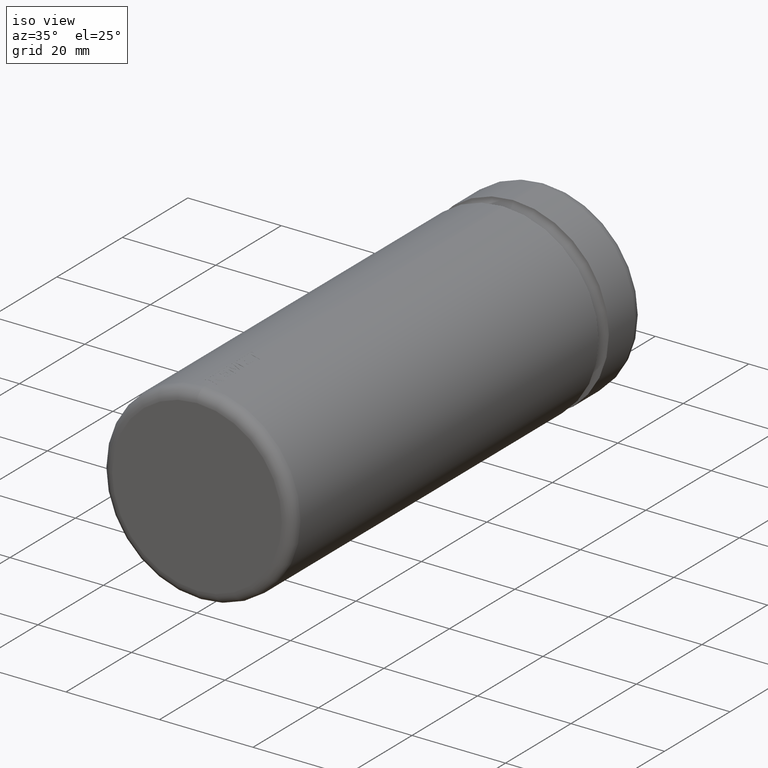
[diagram: clean part render]
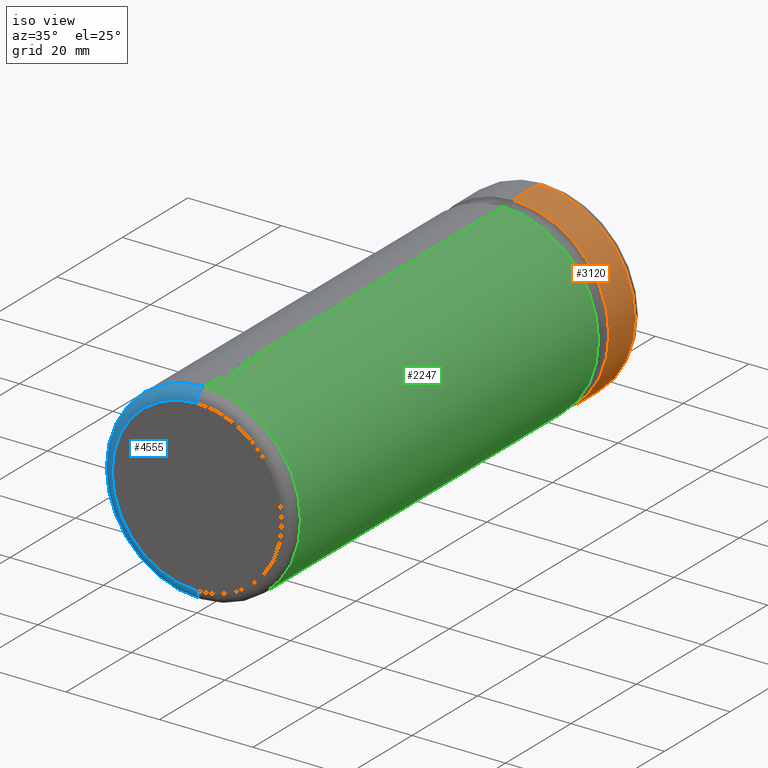
[diagram: same view with three faces highlighted in distinct colors, each labeled with its STEP entity id]
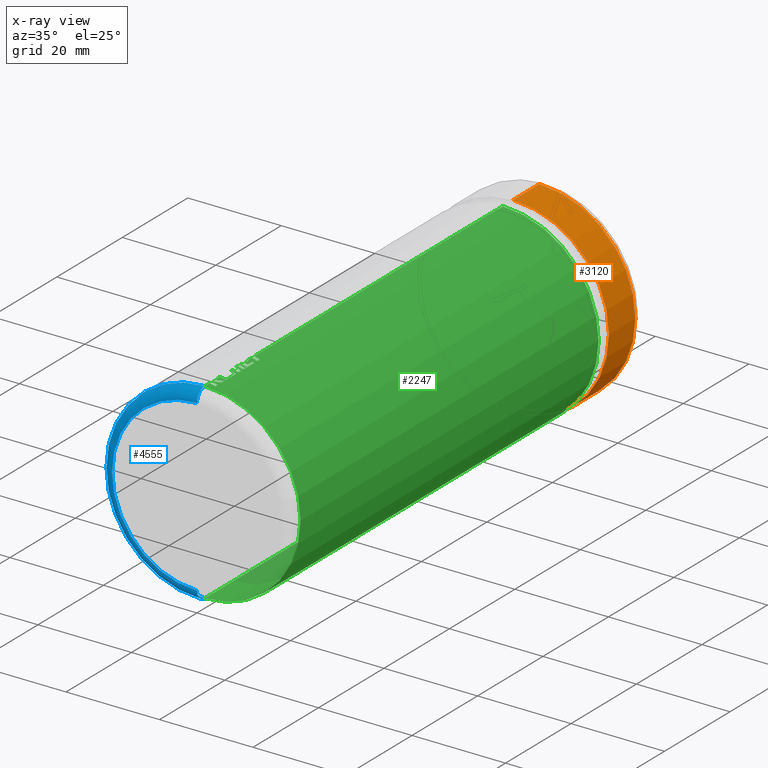
[diagram: x-ray of the same camera — body ghosted, the three highlighted faces saturated]
A machine part, iso view with three faces highlighted in distinct colors.
The next image is the same camera in x-ray (body ghosted, the three faces saturated) — at least one of them is partly hidden behind the body in this view.
Their STEP definitions:

[orange] entity #3120 — the highlighted cylindrical surface (partial cylindrical patch) has radius 20.5 mm, axis along (-0, -1, -0).
#86 = CIRCLE ( 'NONE', #279, 20.49999999999999600 ) ;
#88 = CARTESIAN_POINT ( 'NONE',  ( 0.0000000000000000000, 96.57685999999999600, -20.49999999999999600 ) ) ;
#195 = CARTESIAN_POINT ( 'NONE',  ( 2.510525938252074500E-015, 107.0000000000000000, 20.50000000000000000 ) ) ;
#279 = AXIS2_PLACEMENT_3D ( 'NONE', #700, #2280, #3020 ) ;
#577 = ORIENTED_EDGE ( 'NONE', *, *, #1472, .T. ) ;
#700 = CARTESIAN_POINT ( 'NONE',  ( 0.0000000000000000000, 96.57685999999999600, 0.0000000000000000000 ) ) ;
#712 = CARTESIAN_POINT ( 'NONE',  ( 0.0000000000000000000, 107.0000000000000000, 0.0000000000000000000 ) ) ;
#870 = AXIS2_PLACEMENT_3D ( 'NONE', #3249, #3941, #1787 ) ;
#895 = EDGE_CURVE ( 'NONE', #2580, #4649, #4565, .T. ) ;
#976 = FACE_OUTER_BOUND ( 'NONE', #1151, .T. ) ;
#1151 = EDGE_LOOP ( 'NONE', ( #3290, #577, #3296, #4280 ) ) ;
#1184 = DIRECTION ( 'NONE',  ( -0.0000000000000000000, -1.000000000000000000, -0.0000000000000000000 ) ) ;
#1356 = VECTOR ( 'NONE', #4265, 1000.000000000000000 ) ;
#1472 = EDGE_CURVE ( 'NONE', #4014, #3039, #1805, .T. ) ;
#1787 = DIRECTION ( 'NONE',  ( 0.0000000000000000000, 0.0000000000000000000, 1.000000000000000000 ) ) ;
#1805 = LINE ( 'NONE', #195, #4560 ) ;
#2214 = DIRECTION ( 'NONE',  ( 0.0000000000000000000, 0.0000000000000000000, -1.000000000000000000 ) ) ;
#2265 = CARTESIAN_POINT ( 'NONE',  ( 2.510525938252074500E-015, 104.6383999999999900, 20.50000000000000000 ) ) ;
#2280 = DIRECTION ( 'NONE',  ( -0.0000000000000000000, 1.000000000000000000, -0.0000000000000000000 ) ) ;
#2420 = CIRCLE ( 'NONE', #870, 20.50000000000000000 ) ;
#2580 = VERTEX_POINT ( 'NONE', #4202 ) ;
#3020 = DIRECTION ( 'NONE',  ( 0.0000000000000000000, 0.0000000000000000000, 1.000000000000000000 ) ) ;
#3032 = CYLINDRICAL_SURFACE ( 'NONE', #3324, 20.50000000000000000 ) ;
#3039 = VERTEX_POINT ( 'NONE', #4141 ) ;
#3120 = ADVANCED_FACE ( 'NONE', ( #976 ), #3032, .T. ) ;
#3249 = CARTESIAN_POINT ( 'NONE',  ( 0.0000000000000000000, 104.6383999999999900, 0.0000000000000000000 ) ) ;
#3290 = ORIENTED_EDGE ( 'NONE', *, *, #3401, .T. ) ;
#3296 = ORIENTED_EDGE ( 'NONE', *, *, #4359, .T. ) ;
#3324 = AXIS2_PLACEMENT_3D ( 'NONE', #712, #4373, #2214 ) ;
#3401 = EDGE_CURVE ( 'NONE', #2580, #4014, #2420, .T. ) ;
#3564 = CARTESIAN_POINT ( 'NONE',  ( 0.0000000000000000000, 107.0000000000000000, -20.50000000000000000 ) ) ;
#3941 = DIRECTION ( 'NONE',  ( -0.0000000000000000000, -1.000000000000000000, -0.0000000000000000000 ) ) ;
#4014 = VERTEX_POINT ( 'NONE', #2265 ) ;
#4141 = CARTESIAN_POINT ( 'NONE',  ( 2.510525938252074500E-015, 96.57685999999999600, 20.49999999999999600 ) ) ;
#4202 = CARTESIAN_POINT ( 'NONE',  ( 0.0000000000000000000, 104.6383999999999900, -20.50000000000000000 ) ) ;
#4265 = DIRECTION ( 'NONE',  ( -0.0000000000000000000, -1.000000000000000000, -0.0000000000000000000 ) ) ;
#4280 = ORIENTED_EDGE ( 'NONE', *, *, #895, .F. ) ;
#4359 = EDGE_CURVE ( 'NONE', #3039, #4649, #86, .T. ) ;
#4373 = DIRECTION ( 'NONE',  ( -0.0000000000000000000, -1.000000000000000000, -0.0000000000000000000 ) ) ;
#4560 = VECTOR ( 'NONE', #1184, 1000.000000000000000 ) ;
#4565 = LINE ( 'NONE', #3564, #1356 ) ;
#4649 = VERTEX_POINT ( 'NONE', #88 ) ;

[blue] entity #4555 — the highlighted toroidal blend (fillet) surface has major radius 18.1384 mm and minor (blend) radius 2.3616 mm.
#89 = EDGE_CURVE ( 'NONE', #3268, #2226, #3265, .T. ) ;
#314 = AXIS2_PLACEMENT_3D ( 'NONE', #399, #750, #3671 ) ;
#399 = CARTESIAN_POINT ( 'NONE',  ( 0.0000000000000000000, 2.361600000000005500, 18.13839999999999700 ) ) ;
#400 = DIRECTION ( 'NONE',  ( 0.0000000000000000000, 0.0000000000000000000, 1.000000000000000000 ) ) ;
#427 = FACE_OUTER_BOUND ( 'NONE', #3603, .T. ) ;
#750 = DIRECTION ( 'NONE',  ( -1.000000000000000000, 0.0000000000000000000, 0.0000000000000000000 ) ) ;
#943 = CIRCLE ( 'NONE', #3083, 18.13839999999999700 ) ;
#1060 = TOROIDAL_SURFACE ( 'NONE', #2135, 18.13839999999999700, 2.361600000000000100 ) ;
#1121 = DIRECTION ( 'NONE',  ( 1.224646799147353700E-016, 0.0000000000000000000, -1.000000000000000000 ) ) ;
#1138 = ORIENTED_EDGE ( 'NONE', *, *, #4123, .T. ) ;
#1300 = DIRECTION ( 'NONE',  ( 0.0000000000000000000, 1.000000000000000000, 0.0000000000000000000 ) ) ;
#1364 = EDGE_CURVE ( 'NONE', #1875, #3268, #943, .T. ) ;
#1391 = CARTESIAN_POINT ( 'NONE',  ( 0.0000000000000000000, 0.0000000000000000000, 18.13839999999999700 ) ) ;
#1483 = DIRECTION ( 'NONE',  ( 1.000000000000000000, -0.0000000000000000000, 1.224646799147353200E-016 ) ) ;
#1512 = ORIENTED_EDGE ( 'NONE', *, *, #2922, .F. ) ;
#1816 = CARTESIAN_POINT ( 'NONE',  ( 2.221313350165435200E-015, 2.361600000000005500, -18.13839999999999700 ) ) ;
#1847 = ORIENTED_EDGE ( 'NONE', *, *, #1364, .F. ) ;
#1875 = VERTEX_POINT ( 'NONE', #1391 ) ;
#1975 = CARTESIAN_POINT ( 'NONE',  ( 2.365919644208754400E-015, 0.0000000000000000000, -18.13839999999999700 ) ) ;
#2004 = CARTESIAN_POINT ( 'NONE',  ( 0.0000000000000000000, 2.361600000000005500, 0.0000000000000000000 ) ) ;
#2015 = DIRECTION ( 'NONE',  ( 0.0000000000000000000, 0.0000000000000000000, 1.000000000000000000 ) ) ;
#2133 = CARTESIAN_POINT ( 'NONE',  ( 0.0000000000000000000, 2.361600000000005500, 20.49999999999999600 ) ) ;
#2135 = AXIS2_PLACEMENT_3D ( 'NONE', #4257, #3643, #400 ) ;
#2226 = VERTEX_POINT ( 'NONE', #3218 ) ;
#2475 = ORIENTED_EDGE ( 'NONE', *, *, #89, .F. ) ;
#2627 = AXIS2_PLACEMENT_3D ( 'NONE', #2004, #1300, #2015 ) ;
#2715 = CARTESIAN_POINT ( 'NONE',  ( 0.0000000000000000000, 0.0000000000000000000, 0.0000000000000000000 ) ) ;
#2770 = CIRCLE ( 'NONE', #2627, 20.50000000000000000 ) ;
#2841 = AXIS2_PLACEMENT_3D ( 'NONE', #1816, #1483, #1121 ) ;
#2922 = EDGE_CURVE ( 'NONE', #2226, #3450, #2770, .T. ) ;
#3083 = AXIS2_PLACEMENT_3D ( 'NONE', #2715, #3761, #4464 ) ;
#3218 = CARTESIAN_POINT ( 'NONE',  ( 2.510525938252074100E-015, 2.361600000000005500, -20.49999999999999600 ) ) ;
#3265 = CIRCLE ( 'NONE', #2841, 2.361599999999998400 ) ;
#3268 = VERTEX_POINT ( 'NONE', #1975 ) ;
#3450 = VERTEX_POINT ( 'NONE', #2133 ) ;
#3603 = EDGE_LOOP ( 'NONE', ( #2475, #1847, #1138, #1512 ) ) ;
#3643 = DIRECTION ( 'NONE',  ( 0.0000000000000000000, 1.000000000000000000, 0.0000000000000000000 ) ) ;
#3671 = DIRECTION ( 'NONE',  ( 0.0000000000000000000, 0.0000000000000000000, 1.000000000000000000 ) ) ;
#3761 = DIRECTION ( 'NONE',  ( -0.0000000000000000000, -1.000000000000000000, -0.0000000000000000000 ) ) ;
#4123 = EDGE_CURVE ( 'NONE', #1875, #3450, #4624, .T. ) ;
#4257 = CARTESIAN_POINT ( 'NONE',  ( 0.0000000000000000000, 2.361600000000005500, 0.0000000000000000000 ) ) ;
#4464 = DIRECTION ( 'NONE',  ( 0.0000000000000000000, 0.0000000000000000000, 1.000000000000000000 ) ) ;
#4555 = ADVANCED_FACE ( 'NONE', ( #427 ), #1060, .T. ) ;
#4624 = CIRCLE ( 'NONE', #314, 2.361599999999998400 ) ;

[green] entity #2247 — the highlighted cylindrical surface (partial cylindrical patch) has radius 20.5 mm, axis along (-0, -1, -0).
#8 = B_SPLINE_CURVE_WITH_KNOTS ( 'NONE', 3,
 ( #3325, #1134, #3040, #129 ),
 .UNSPECIFIED., .F., .F.,
 ( 4, 4 ),
 ( 0.06501775419659658300, 1.000000000000000000 ),
 .UNSPECIFIED. ) ;
#62 = CIRCLE ( 'NONE', #4376, 20.50000000000000000 ) ;
#67 = B_SPLINE_CURVE_WITH_KNOTS ( 'NONE', 3,
 ( #630, #2462, #3215, #698 ),
 .UNSPECIFIED., .F., .F.,
 ( 4, 4 ),
 ( 0.0000000000000000000, 0.6291467272315028900 ),
 .UNSPECIFIED. ) ;
#87 = DIRECTION ( 'NONE',  ( -0.0000000000000000000, -1.000000000000000000, -0.0000000000000000000 ) ) ;
#129 = CARTESIAN_POINT ( 'NONE',  ( 1.533874242116386900, 5.354437851732230400, 20.44253481859262700 ) ) ;
#159 = VERTEX_POINT ( 'NONE', #1553 ) ;
#176 = CARTESIAN_POINT ( 'NONE',  ( -8.806211603291655700E-010, 13.52376457376976400, 20.49998773079722600 ) ) ;
#199 = CARTESIAN_POINT ( 'NONE',  ( -1.369721280562634400E-010, 4.664714496102076800, 20.49999993562216000 ) ) ;
#210 = ORIENTED_EDGE ( 'NONE', *, *, #3796, .T. ) ;
#219 = LINE ( 'NONE', #319, #3862 ) ;
#223 = CARTESIAN_POINT ( 'NONE',  ( -2.643939066426523100E-010, 5.638215953928424900, 20.49999993557945300 ) ) ;
#238 = CARTESIAN_POINT ( 'NONE',  ( 1.151100656243657600, 15.47591010259835000, 20.46855548499425800 ) ) ;
#257 = CARTESIAN_POINT ( 'NONE',  ( 1.533874242116382900, 3.364711372035853000, 20.44253481859263000 ) ) ;
#286 = CARTESIAN_POINT ( 'NONE',  ( 0.5117677789836189200, 12.24362340760251700, 20.49998158459709400 ) ) ;
#287 = ORIENTED_EDGE ( 'NONE', *, *, #2301, .F. ) ;
#310 = CARTESIAN_POINT ( 'NONE',  ( 0.5117700421562495500, 5.850347737387600100, 20.49999872179890700 ) ) ;
#319 = CARTESIAN_POINT ( 'NONE',  ( 2.510525938252074500E-015, 107.0000000000000000, 20.50000000000000000 ) ) ;
#330 = CARTESIAN_POINT ( 'NONE',  ( -8.792321618209400800E-010, 3.805932654816530200, 20.49998773084443100 ) ) ;
#332 = VERTEX_POINT ( 'NONE', #618 ) ;
#337 = LINE ( 'NONE', #4670, #4078 ) ;
#380 = DIRECTION ( 'NONE',  ( -0.0000000000000000000, -1.000000000000000000, -0.0000000000000000000 ) ) ;
#386 = VECTOR ( 'NONE', #3260, 1000.000000000000000 ) ;
#403 = CARTESIAN_POINT ( 'NONE',  ( 1.533874242116382900, 10.49218539282256700, 20.44253481859263000 ) ) ;
#422 = ORIENTED_EDGE ( 'NONE', *, *, #802, .F. ) ;
#431 = VERTEX_POINT ( 'NONE', #2464 ) ;
#433 = LINE ( 'NONE', #257, #1578 ) ;
#448 = ORIENTED_EDGE ( 'NONE', *, *, #2331, .T. ) ;
#462 = EDGE_CURVE ( 'NONE', #1425, #510, #3231, .T. ) ;
#470 = CARTESIAN_POINT ( 'NONE',  ( 1.533874242116382900, 11.94969606425970500, 20.44253481859263000 ) ) ;
#510 = VERTEX_POINT ( 'NONE', #403 ) ;
#522 = CARTESIAN_POINT ( 'NONE',  ( 0.5117680354823760400, 11.83874854091586700, 20.49998151941439400 ) ) ;
#532 = EDGE_CURVE ( 'NONE', #2873, #2797, #2741, .T. ) ;
#537 = LINE ( 'NONE', #2586, #3333 ) ;
#550 = LINE ( 'NONE', #1743, #1515 ) ;
#563 = EDGE_CURVE ( 'NONE', #1059, #332, #2005, .T. ) ;
#570 = CARTESIAN_POINT ( 'NONE',  ( 0.5117662898786412600, 13.01247491140750500, 20.49997495150672900 ) ) ;
#618 = CARTESIAN_POINT ( 'NONE',  ( -4.314417462641183900E-009, 10.31086990600085000, 20.49999254565389300 ) ) ;
#630 = CARTESIAN_POINT ( 'NONE',  ( 1.533874242116386900, 17.10962756807193900, 20.44253481859262700 ) ) ;
#637 = ORIENTED_EDGE ( 'NONE', *, *, #1080, .F. ) ;
#645 = CARTESIAN_POINT ( 'NONE',  ( 0.0000000000000000000, 107.0000000000000000, -20.50000000000000000 ) ) ;
#698 = CARTESIAN_POINT ( 'NONE',  ( -4.398895645336903300E-009, 17.55091877952359200, 20.49999542117416200 ) ) ;
#703 = CARTESIAN_POINT ( 'NONE',  ( -8.799120396329749000E-010, 13.15961153051858000, 20.49998773082111500 ) ) ;
#707 = B_SPLINE_CURVE_WITH_KNOTS ( 'NONE', 3,
 ( #1064, #4321, #3275, #2166 ),
 .UNSPECIFIED., .F., .F.,
 ( 4, 4 ),
 ( 0.4923300032358751100, 1.000000000000000000 ),
 .UNSPECIFIED. ) ;
#751 = CARTESIAN_POINT ( 'NONE',  ( -8.806211603291655700E-010, 13.52376457376976400, 20.49998773079722600 ) ) ;
#802 = EDGE_CURVE ( 'NONE', #4108, #1848, #433, .T. ) ;
#817 = CYLINDRICAL_SURFACE ( 'NONE', #4474, 20.50000000000000000 ) ;
#835 = LINE ( 'NONE', #4345, #4454 ) ;
#865 = B_SPLINE_CURVE_WITH_KNOTS ( 'NONE', 3,
 ( #3866, #3141, #3528, #199 ),
 .UNSPECIFIED., .F., .F.,
 ( 4, 4 ),
 ( 0.0000000000000000000, 0.9349822497971312900 ),
 .UNSPECIFIED. ) ;
#880 = CIRCLE ( 'NONE', #2447, 20.50000000000000000 ) ;
#884 = CARTESIAN_POINT ( 'NONE',  ( 1.533874242116386900, 12.71819884877908900, 20.44253481859262700 ) ) ;
#900 = CARTESIAN_POINT ( 'NONE',  ( 0.2083062398103580300, 15.61894881153985700, 20.49894164366677900 ) ) ;
#933 = CARTESIAN_POINT ( 'NONE',  ( 0.9594870982861206700, 14.10675263911503800, 20.47753365296276200 ) ) ;
#958 = VECTOR ( 'NONE', #3321, 1000.000000000000000 ) ;
#970 = CARTESIAN_POINT ( 'NONE',  ( -8.813040468022290400E-010, 7.053816141572133000, 20.49998773077389600 ) ) ;
#988 = EDGE_CURVE ( 'NONE', #2797, #431, #1157, .T. ) ;
#989 = CARTESIAN_POINT ( 'NONE',  ( 0.9594870982861206700, 14.10675263911503800, 20.47753365296276200 ) ) ;
#1040 = DIRECTION ( 'NONE',  ( 0.0000000000000000000, 1.000000000000000000, 0.0000000000000000000 ) ) ;
#1047 = DIRECTION ( 'NONE',  ( 0.0000000000000000000, 1.000000000000000000, 0.0000000000000000000 ) ) ;
#1059 = VERTEX_POINT ( 'NONE', #1746 ) ;
#1064 = CARTESIAN_POINT ( 'NONE',  ( -8.813040468022290400E-010, 7.053816141572133000, 20.49998773077389600 ) ) ;
#1080 = EDGE_CURVE ( 'NONE', #510, #2951, #337, .T. ) ;
#1083 = CARTESIAN_POINT ( 'NONE',  ( 1.533874242116383100, 3.364711372035853000, 20.44253481859263000 ) ) ;
#1098 = B_SPLINE_CURVE_WITH_KNOTS ( 'NONE', 3,
 ( #2400, #2380, #1651, #1996 ),
 .UNSPECIFIED., .F., .F.,
 ( 4, 4 ),
 ( 0.3708532727830178300, 1.000000000000000000 ),
 .UNSPECIFIED. ) ;
#1129 = CARTESIAN_POINT ( 'NONE',  ( -1.369721280562634400E-010, 4.664714496102076800, 20.49999993562216000 ) ) ;
#1134 = CARTESIAN_POINT ( 'NONE',  ( 0.5117700456383208500, 4.943592752497637300, 20.49999872189245300 ) ) ;
#1140 = VERTEX_POINT ( 'NONE', #703 ) ;
#1157 = B_SPLINE_CURVE_WITH_KNOTS ( 'NONE', 3,
 ( #2482, #2058, #238, #4244 ),
 .UNSPECIFIED., .F., .F.,
 ( 4, 4 ),
 ( 0.0000000000000000000, 1.000000000000000000 ),
 .UNSPECIFIED. ) ;
#1185 = CARTESIAN_POINT ( 'NONE',  ( 0.0000000000000000000, 93.42314000000000400, 20.50000000000000000 ) ) ;
#1227 = VECTOR ( 'NONE', #3138, 1000.000000000000000 ) ;
#1241 = CARTESIAN_POINT ( 'NONE',  ( 0.0000000000000000000, 93.42314000000000400, 0.0000000000000000000 ) ) ;
#1247 = ORIENTED_EDGE ( 'NONE', *, *, #4462, .F. ) ;
#1251 = CARTESIAN_POINT ( 'NONE',  ( 1.533874242116386900, 11.29841721896850100, 20.44253481859262700 ) ) ;
#1257 = VERTEX_POINT ( 'NONE', #2222 ) ;
#1260 = CARTESIAN_POINT ( 'NONE',  ( 2.705133508403569600E-012, 15.67845905065298800, 20.49999998710997000 ) ) ;
#1261 = ORIENTED_EDGE ( 'NONE', *, *, #3368, .T. ) ;
#1268 = VECTOR ( 'NONE', #380, 1000.000000000000000 ) ;
#1295 = VERTEX_POINT ( 'NONE', #1129 ) ;
#1327 = VERTEX_POINT ( 'NONE', #3334 ) ;
#1354 = EDGE_CURVE ( 'NONE', #4673, #2142, #2735, .T. ) ;
#1384 = ORIENTED_EDGE ( 'NONE', *, *, #3078, .F. ) ;
#1398 = CARTESIAN_POINT ( 'NONE',  ( 1.533874242116386900, 11.29841721896850100, 20.44253481859262700 ) ) ;
#1416 = CARTESIAN_POINT ( 'NONE',  ( 0.5117677025315399100, 10.54955781348216700, 20.49998187289039100 ) ) ;
#1425 = VERTEX_POINT ( 'NONE', #4110 ) ;
#1450 = LINE ( 'NONE', #3959, #2076 ) ;
#1477 = VECTOR ( 'NONE', #87, 1000.000000000000000 ) ;
#1478 = B_SPLINE_CURVE_WITH_KNOTS ( 'NONE', 3,
 ( #4609, #286, #4274, #2109 ),
 .UNSPECIFIED., .F., .F.,
 ( 4, 4 ),
 ( 0.4324923758355769300, 1.000000000000000000 ),
 .UNSPECIFIED. ) ;
#1515 = VECTOR ( 'NONE', #1040, 1000.000000000000000 ) ;
#1524 = ORIENTED_EDGE ( 'NONE', *, *, #2869, .F. ) ;
#1552 = CARTESIAN_POINT ( 'NONE',  ( 2.705133508403569600E-012, 15.67845905065298800, 20.49999998710997000 ) ) ;
#1553 = CARTESIAN_POINT ( 'NONE',  ( 1.533874242116382900, 11.94969606425970500, 20.44253481859263000 ) ) ;
#1563 = EDGE_CURVE ( 'NONE', #2505, #4623, #2162, .T. ) ;
#1578 = VECTOR ( 'NONE', #2806, 1000.000000000000000 ) ;
#1580 = LINE ( 'NONE', #2486, #4567 ) ;
#1601 = B_SPLINE_CURVE_WITH_KNOTS ( 'NONE', 3,
 ( #900, #3748, #4451, #1552 ),
 .UNSPECIFIED., .F., .F.,
 ( 4, 4 ),
 ( 0.0000000000000000000, 0.3726641714012899300 ),
 .UNSPECIFIED. ) ;
#1623 = EDGE_CURVE ( 'NONE', #1327, #4419, #1956, .T. ) ;
#1633 = ORIENTED_EDGE ( 'NONE', *, *, #3420, .F. ) ;
#1641 = CARTESIAN_POINT ( 'NONE',  ( 1.533874242116382900, 13.08215582357079200, 20.44253481859263000 ) ) ;
#1651 = CARTESIAN_POINT ( 'NONE',  ( 1.023536039159376900, 16.39528051266817600, 20.48082726281396400 ) ) ;
#1658 = CARTESIAN_POINT ( 'NONE',  ( 0.7092523120753641000, 14.17826893160919100, 20.48925855367495800 ) ) ;
#1663 = VECTOR ( 'NONE', #3111, 1000.000000000000000 ) ;
#1666 = CARTESIAN_POINT ( 'NONE',  ( -4.398895645336903300E-009, 17.55091877952359200, 20.49999542117416200 ) ) ;
#1721 = B_SPLINE_CURVE_WITH_KNOTS ( 'NONE', 3,
 ( #2941, #3981, #2390, #3778 ),
 .UNSPECIFIED., .F., .F.,
 ( 4, 4 ),
 ( 0.4923300032275103000, 1.000000000000000000 ),
 .UNSPECIFIED. ) ;
#1725 = EDGE_CURVE ( 'NONE', #2698, #1954, #1799, .T. ) ;
#1740 = DIRECTION ( 'NONE',  ( -0.0000000000000000000, -1.000000000000000000, -0.0000000000000000000 ) ) ;
#1743 = CARTESIAN_POINT ( 'NONE',  ( 0.2083062398103539500, 14.32130150560967300, 20.49894164366677900 ) ) ;
#1746 = CARTESIAN_POINT ( 'NONE',  ( 1.533874242116386900, 9.870037818277818800, 20.44253481859262700 ) ) ;
#1749 = ORIENTED_EDGE ( 'NONE', *, *, #4290, .T. ) ;
#1763 = EDGE_CURVE ( 'NONE', #4673, #3996, #880, .T. ) ;
#1764 = EDGE_CURVE ( 'NONE', #3002, #2873, #3257, .T. ) ;
#1783 = CARTESIAN_POINT ( 'NONE',  ( 0.5117678299525724200, 10.16392636337133800, 20.49998184027220900 ) ) ;
#1785 = ORIENTED_EDGE ( 'NONE', *, *, #3961, .T. ) ;
#1797 = DIRECTION ( 'NONE',  ( -0.0000000000000000000, -1.000000000000000000, -0.0000000000000000000 ) ) ;
#1799 = LINE ( 'NONE', #2678, #4281 ) ;
#1848 = VERTEX_POINT ( 'NONE', #4648 ) ;
#1857 = ORIENTED_EDGE ( 'NONE', *, *, #1890, .F. ) ;
#1890 = EDGE_CURVE ( 'NONE', #4419, #1059, #1450, .T. ) ;
#1897 = EDGE_CURVE ( 'NONE', #2520, #1327, #707, .T. ) ;
#1922 = EDGE_CURVE ( 'NONE', #3978, #4571, #537, .T. ) ;
#1948 = DIRECTION ( 'NONE',  ( 0.0000000000000000000, 0.0000000000000000000, 1.000000000000000000 ) ) ;
#1954 = VERTEX_POINT ( 'NONE', #2308 ) ;
#1956 = LINE ( 'NONE', #4233, #1227 ) ;
#1981 = ORIENTED_EDGE ( 'NONE', *, *, #4030, .F. ) ;
#1996 = CARTESIAN_POINT ( 'NONE',  ( 1.533874242116382900, 16.24814012137219900, 20.44253481859263000 ) ) ;
#2005 = B_SPLINE_CURVE_WITH_KNOTS ( 'NONE', 3,
 ( #2512, #3304, #1783, #4377 ),
 .UNSPECIFIED., .F., .F.,
 ( 4, 4 ),
 ( 0.0000000000000000000, 0.5702405492299278400 ),
 .UNSPECIFIED. ) ;
#2042 = CARTESIAN_POINT ( 'NONE',  ( -8.799120396329749000E-010, 13.15961153051858000, 20.49998773082111500 ) ) ;
#2047 = ORIENTED_EDGE ( 'NONE', *, *, #3379, .F. ) ;
#2053 = EDGE_CURVE ( 'NONE', #2951, #4571, #2670, .T. ) ;
#2058 = CARTESIAN_POINT ( 'NONE',  ( 1.342588177268700700, 15.42147901172457300, 20.45688767504361700 ) ) ;
#2076 = VECTOR ( 'NONE', #1047, 1000.000000000000000 ) ;
#2083 = VERTEX_POINT ( 'NONE', #3815 ) ;
#2088 = VECTOR ( 'NONE', #4319, 1000.000000000000000 ) ;
#2108 = CARTESIAN_POINT ( 'NONE',  ( 2.510525938252074500E-015, 93.42314000000000400, -20.50000000000000000 ) ) ;
#2109 = CARTESIAN_POINT ( 'NONE',  ( 1.533874242116382900, 11.94969606425970500, 20.44253481859263000 ) ) ;
#2120 = VERTEX_POINT ( 'NONE', #223 ) ;
#2121 = ORIENTED_EDGE ( 'NONE', *, *, #1623, .F. ) ;
#2133 = CARTESIAN_POINT ( 'NONE',  ( 0.0000000000000000000, 2.361600000000005500, 20.49999999999999600 ) ) ;
#2142 = VERTEX_POINT ( 'NONE', #1666 ) ;
#2148 = CARTESIAN_POINT ( 'NONE',  ( 1.023538550876056200, 6.062478966235435300, 20.48082707435115800 ) ) ;
#2162 = B_SPLINE_CURVE_WITH_KNOTS ( 'NONE', 3,
 ( #933, #1658, #2777, #4520 ),
 .UNSPECIFIED., .F., .F.,
 ( 4, 4 ),
 ( 0.0000000000000000000, 1.000000000000000000 ),
 .UNSPECIFIED. ) ;
#2166 = CARTESIAN_POINT ( 'NONE',  ( 1.533874242116382900, 6.612015992414344000, 20.44253481859263000 ) ) ;
#2179 = EDGE_CURVE ( 'NONE', #3978, #159, #1478, .T. ) ;
#2207 = ORIENTED_EDGE ( 'NONE', *, *, #1725, .F. ) ;
#2209 = CARTESIAN_POINT ( 'NONE',  ( 0.2083062398103580300, 15.61894881153985700, 20.49894164366677900 ) ) ;
#2216 = DIRECTION ( 'NONE',  ( 0.0000000000000000000, 1.000000000000000000, 0.0000000000000000000 ) ) ;
#2222 = CARTESIAN_POINT ( 'NONE',  ( -4.401201960198214500E-009, 16.68955860945249000, 20.49999542117035000 ) ) ;
#2226 = VERTEX_POINT ( 'NONE', #3218 ) ;
#2227 = DIRECTION ( 'NONE',  ( 0.0000000000000000000, 1.000000000000000000, 0.0000000000000000000 ) ) ;
#2234 = CARTESIAN_POINT ( 'NONE',  ( 1.533874242116382900, 10.49218539282256700, 20.44253481859263000 ) ) ;
#2247 = ADVANCED_FACE ( 'NONE', ( #2493 ), #817, .T. ) ;
#2301 = EDGE_CURVE ( 'NONE', #1954, #2142, #67, .T. ) ;
#2308 = CARTESIAN_POINT ( 'NONE',  ( 1.533874242116386900, 17.10962756807193900, 20.44253481859262700 ) ) ;
#2318 = CARTESIAN_POINT ( 'NONE',  ( 2.510525938252074500E-015, 107.0000000000000000, 20.50000000000000000 ) ) ;
#2331 = EDGE_CURVE ( 'NONE', #3450, #2226, #62, .T. ) ;
#2346 = CARTESIAN_POINT ( 'NONE',  ( 1.023532433816112000, 12.86533834007043700, 20.48082753333536800 ) ) ;
#2369 = VERTEX_POINT ( 'NONE', #2209 ) ;
#2380 = CARTESIAN_POINT ( 'NONE',  ( 0.5117686877644201900, 16.54241935326032100, 20.49998658808276600 ) ) ;
#2390 = CARTESIAN_POINT ( 'NONE',  ( 1.023532433386043600, 3.511787062961103000, 20.48082753336763400 ) ) ;
#2400 = CARTESIAN_POINT ( 'NONE',  ( -4.401201960198214500E-009, 16.68955860945249000, 20.49999542117035000 ) ) ;
#2411 = CARTESIAN_POINT ( 'NONE',  ( 1.533874242116386900, 12.71819884877908900, 20.44253481859262700 ) ) ;
#2416 = CARTESIAN_POINT ( 'NONE',  ( 1.023535301879631400, 11.56858452072258600, 20.48082731813461900 ) ) ;
#2426 = VECTOR ( 'NONE', #2227, 1000.000000000000000 ) ;
#2446 = ORIENTED_EDGE ( 'NONE', *, *, #4369, .F. ) ;
#2447 = AXIS2_PLACEMENT_3D ( 'NONE', #1241, #4491, #1948 ) ;
#2448 = ORIENTED_EDGE ( 'NONE', *, *, #988, .F. ) ;
#2462 = CARTESIAN_POINT ( 'NONE',  ( 1.023536039026078600, 17.25672553360554000, 20.48082726282396500 ) ) ;
#2464 = CARTESIAN_POINT ( 'NONE',  ( 0.9594870982861166700, 15.53034119635225700, 20.47753365296276200 ) ) ;
#2465 = CARTESIAN_POINT ( 'NONE',  ( 1.533874242116382900, 9.331734601897471400, 20.44253481859263000 ) ) ;
#2482 = CARTESIAN_POINT ( 'NONE',  ( 1.533874242116386900, 15.36704791797066600, 20.44253481859262700 ) ) ;
#2486 = CARTESIAN_POINT ( 'NONE',  ( 2.510525938252074500E-015, 107.0000000000000000, 20.50000000000000000 ) ) ;
#2493 = FACE_OUTER_BOUND ( 'NONE', #3877, .T. ) ;
#2499 = CARTESIAN_POINT ( 'NONE',  ( 2.510525938252074500E-015, 107.0000000000000000, 20.50000000000000000 ) ) ;
#2505 = VERTEX_POINT ( 'NONE', #989 ) ;
#2509 = ORIENTED_EDGE ( 'NONE', *, *, #4543, .F. ) ;
#2512 = CARTESIAN_POINT ( 'NONE',  ( 1.533874242116386900, 9.870037818277818800, 20.44253481859262700 ) ) ;
#2520 = VERTEX_POINT ( 'NONE', #970 ) ;
#2521 = LINE ( 'NONE', #3366, #1477 ) ;
#2538 = DIRECTION ( 'NONE',  ( 0.0000000000000000000, 0.0000000000000000000, 1.000000000000000000 ) ) ;
#2586 = CARTESIAN_POINT ( 'NONE',  ( 2.510525938252074500E-015, 107.0000000000000000, 20.50000000000000000 ) ) ;
#2587 = CARTESIAN_POINT ( 'NONE',  ( 1.533874242116382900, 16.24814012137219900, 20.44253481859263000 ) ) ;
#2609 = CARTESIAN_POINT ( 'NONE',  ( -2.677040735076561800E-010, 10.57824387034095700, 20.49999255912739600 ) ) ;
#2646 = LINE ( 'NONE', #645, #3608 ) ;
#2658 = DIRECTION ( 'NONE',  ( 0.0000000000000000000, 1.000000000000000000, 0.0000000000000000000 ) ) ;
#2668 = ORIENTED_EDGE ( 'NONE', *, *, #1897, .F. ) ;
#2670 = B_SPLINE_CURVE_WITH_KNOTS ( 'NONE', 3,
 ( #1251, #2416, #522, #3489 ),
 .UNSPECIFIED., .F., .F.,
 ( 4, 4 ),
 ( 0.0000000000000000000, 0.5675075879899760300 ),
 .UNSPECIFIED. ) ;
#2678 = CARTESIAN_POINT ( 'NONE',  ( 1.533874242116382900, 16.24814012137219900, 20.44253481859263000 ) ) ;
#2698 = VERTEX_POINT ( 'NONE', #2587 ) ;
#2714 = EDGE_CURVE ( 'NONE', #4072, #3450, #3228, .T. ) ;
#2728 = ORIENTED_EDGE ( 'NONE', *, *, #1354, .T. ) ;
#2735 = LINE ( 'NONE', #2318, #3856 ) ;
#2741 = LINE ( 'NONE', #4640, #958 ) ;
#2751 = EDGE_CURVE ( 'NONE', #159, #3645, #3436, .T. ) ;
#2777 = CARTESIAN_POINT ( 'NONE',  ( 0.4588026309618115600, 14.24978521311553900, 20.49639614828297600 ) ) ;
#2797 = VERTEX_POINT ( 'NONE', #3683 ) ;
#2800 = CARTESIAN_POINT ( 'NONE',  ( 1.533874242116382900, 13.08215582357079200, 20.44253481859263000 ) ) ;
#2806 = DIRECTION ( 'NONE',  ( 0.0000000000000000000, 1.000000000000000000, 0.0000000000000000000 ) ) ;
#2836 = CARTESIAN_POINT ( 'NONE',  ( 2.510525938252074500E-015, 107.0000000000000000, 20.50000000000000000 ) ) ;
#2869 = EDGE_CURVE ( 'NONE', #1848, #1295, #865, .T. ) ;
#2873 = VERTEX_POINT ( 'NONE', #2800 ) ;
#2889 = CARTESIAN_POINT ( 'NONE',  ( -2.643939066426523100E-010, 5.638215953928424900, 20.49999993557945300 ) ) ;
#2891 = CARTESIAN_POINT ( 'NONE',  ( -4.261776920433849700E-009, 12.39058632697161500, 20.49999237934472500 ) ) ;
#2941 = CARTESIAN_POINT ( 'NONE',  ( -8.792321618209400800E-010, 3.805932654816530200, 20.49998773084443100 ) ) ;
#2951 = VERTEX_POINT ( 'NONE', #1398 ) ;
#2981 = DIRECTION ( 'NONE',  ( -0.0000000000000000000, -1.000000000000000000, -0.0000000000000000000 ) ) ;
#3002 = VERTEX_POINT ( 'NONE', #751 ) ;
#3005 = B_SPLINE_CURVE_WITH_KNOTS ( 'NONE', 3,
 ( #884, #2346, #570, #2042 ),
 .UNSPECIFIED., .F., .F.,
 ( 4, 4 ),
 ( 0.0000000000000000000, 0.5076699967697231300 ),
 .UNSPECIFIED. ) ;
#3034 = EDGE_CURVE ( 'NONE', #4499, #2083, #8, .T. ) ;
#3040 = CARTESIAN_POINT ( 'NONE',  ( 1.023538545613730300, 5.149014990978879600, 20.48082707474600600 ) ) ;
#3078 = EDGE_CURVE ( 'NONE', #3996, #2226, #2646, .T. ) ;
#3111 = DIRECTION ( 'NONE',  ( -0.0000000000000000000, -1.000000000000000000, -0.0000000000000000000 ) ) ;
#3122 = ORIENTED_EDGE ( 'NONE', *, *, #2179, .F. ) ;
#3133 = CARTESIAN_POINT ( 'NONE',  ( 2.510525938252074500E-015, 107.0000000000000000, 20.50000000000000000 ) ) ;
#3138 = DIRECTION ( 'NONE',  ( 0.0000000000000000000, 1.000000000000000000, 0.0000000000000000000 ) ) ;
#3141 = CARTESIAN_POINT ( 'NONE',  ( 1.023538503571755000, 4.371347125799277800, 20.48082707790055700 ) ) ;
#3215 = CARTESIAN_POINT ( 'NONE',  ( 0.5117686877301141900, 17.40382194881549800, 20.49998658809381200 ) ) ;
#3218 = CARTESIAN_POINT ( 'NONE',  ( 2.510525938252074100E-015, 2.361600000000005500, -20.49999999999999600 ) ) ;
#3228 = LINE ( 'NONE', #2499, #1268 ) ;
#3231 = B_SPLINE_CURVE_WITH_KNOTS ( 'NONE', 3,
 ( #2609, #1416, #3678, #2234 ),
 .UNSPECIFIED., .F., .F.,
 ( 4, 4 ),
 ( 0.4297594318745408000, 1.000000000000000000 ),
 .UNSPECIFIED. ) ;
#3257 = B_SPLINE_CURVE_WITH_KNOTS ( 'NONE', 3,
 ( #176, #3786, #4145, #1641 ),
 .UNSPECIFIED., .F., .F.,
 ( 4, 4 ),
 ( 0.4923300032331090500, 1.000000000000000000 ),
 .UNSPECIFIED. ) ;
#3260 = DIRECTION ( 'NONE',  ( -0.0000000000000000000, -1.000000000000000000, -0.0000000000000000000 ) ) ;
#3274 = CARTESIAN_POINT ( 'NONE',  ( 0.9594870982861166700, 15.53034119635225700, 20.47753365296276200 ) ) ;
#3275 = CARTESIAN_POINT ( 'NONE',  ( 1.023532434687136400, 6.759284640955067800, 20.48082753327001300 ) ) ;
#3280 = ORIENTED_EDGE ( 'NONE', *, *, #1922, .T. ) ;
#3289 = CARTESIAN_POINT ( 'NONE',  ( 0.0000000000000000000, 2.361600000000005500, 0.0000000000000000000 ) ) ;
#3304 = CARTESIAN_POINT ( 'NONE',  ( 1.023534702270120900, 10.01698312642875700, 20.48082736312540000 ) ) ;
#3321 = DIRECTION ( 'NONE',  ( 0.0000000000000000000, 1.000000000000000000, 0.0000000000000000000 ) ) ;
#3325 = CARTESIAN_POINT ( 'NONE',  ( -2.502213539367619700E-010, 4.738169972038991600, 20.49999993558420600 ) ) ;
#3333 = VECTOR ( 'NONE', #2981, 1000.000000000000000 ) ;
#3334 = CARTESIAN_POINT ( 'NONE',  ( 1.533874242116382900, 6.612015992414344000, 20.44253481859263000 ) ) ;
#3366 = CARTESIAN_POINT ( 'NONE',  ( 2.510525938252074500E-015, 107.0000000000000000, 20.50000000000000000 ) ) ;
#3368 = EDGE_CURVE ( 'NONE', #2520, #2120, #3604, .T. ) ;
#3379 = EDGE_CURVE ( 'NONE', #1257, #2698, #1098, .T. ) ;
#3420 = EDGE_CURVE ( 'NONE', #4074, #2120, #4041, .T. ) ;
#3436 = LINE ( 'NONE', #470, #2426 ) ;
#3447 = ORIENTED_EDGE ( 'NONE', *, *, #1763, .F. ) ;
#3450 = VERTEX_POINT ( 'NONE', #2133 ) ;
#3465 = LINE ( 'NONE', #2836, #386 ) ;
#3489 = CARTESIAN_POINT ( 'NONE',  ( -1.204316062904051200E-008, 12.10891302684182400, 20.49999235220771600 ) ) ;
#3504 = CARTESIAN_POINT ( 'NONE',  ( 1.533874242116382900, 6.274610831861052100, 20.44253481859263000 ) ) ;
#3528 = CARTESIAN_POINT ( 'NONE',  ( 0.5117700734574703900, 4.518030603453524900, 20.49999872263982000 ) ) ;
#3569 = VERTEX_POINT ( 'NONE', #1260 ) ;
#3576 = ORIENTED_EDGE ( 'NONE', *, *, #462, .F. ) ;
#3595 = DIRECTION ( 'NONE',  ( -0.0000000000000000000, -1.000000000000000000, -0.0000000000000000000 ) ) ;
#3604 = LINE ( 'NONE', #3133, #1663 ) ;
#3608 = VECTOR ( 'NONE', #3947, 1000.000000000000000 ) ;
#3609 = CARTESIAN_POINT ( 'NONE',  ( -1.204316062904051200E-008, 12.10891302684182400, 20.49999235220771600 ) ) ;
#3645 = VERTEX_POINT ( 'NONE', #2411 ) ;
#3676 = ORIENTED_EDGE ( 'NONE', *, *, #4269, .F. ) ;
#3678 = CARTESIAN_POINT ( 'NONE',  ( 1.023534361348066500, 10.52087182089977300, 20.48082738870596100 ) ) ;
#3680 = ORIENTED_EDGE ( 'NONE', *, *, #3914, .F. ) ;
#3683 = CARTESIAN_POINT ( 'NONE',  ( 1.533874242116386900, 15.36704791797066600, 20.44253481859262700 ) ) ;
#3715 = CARTESIAN_POINT ( 'NONE',  ( 0.2083062398103539500, 14.32130150560967300, 20.49894164366677900 ) ) ;
#3722 = ORIENTED_EDGE ( 'NONE', *, *, #2053, .F. ) ;
#3748 = CARTESIAN_POINT ( 'NONE',  ( 0.1388732154745253300, 15.63878555817549400, 20.49964720849395400 ) ) ;
#3778 = CARTESIAN_POINT ( 'NONE',  ( 1.533874242116383100, 3.364711372035853000, 20.44253481859263000 ) ) ;
#3786 = CARTESIAN_POINT ( 'NONE',  ( 0.5117662900931594400, 13.37656259886169800, 20.49997495145798600 ) ) ;
#3796 = EDGE_CURVE ( 'NONE', #4499, #1295, #2521, .T. ) ;
#3799 = CARTESIAN_POINT ( 'NONE',  ( -2.502213539367619700E-010, 4.738169972038991600, 20.49999993558420600 ) ) ;
#3815 = CARTESIAN_POINT ( 'NONE',  ( 1.533874242116386900, 5.354437851732230400, 20.44253481859262700 ) ) ;
#3856 = VECTOR ( 'NONE', #4139, 1000.000000000000000 ) ;
#3862 = VECTOR ( 'NONE', #3595, 1000.000000000000000 ) ;
#3866 = CARTESIAN_POINT ( 'NONE',  ( 1.533874242116382900, 4.224663171668876900, 20.44253481859263000 ) ) ;
#3877 = EDGE_LOOP ( 'NONE', ( #3447, #2728, #287, #2207, #2047, #1749, #1247, #2509, #4261, #3676, #2448, #4138, #4230, #1785, #3680, #4209, #3122, #3280, #3722, #637, #3576, #4686, #3979, #1857, #2121, #2668, #1261, #1633, #2446, #3952, #210, #1524, #422, #1981, #4296, #448, #1384 ) ) ;
#3913 = DIRECTION ( 'NONE',  ( 0.0000000000000000000, 0.0000000000000000000, -1.000000000000000000 ) ) ;
#3914 = EDGE_CURVE ( 'NONE', #3645, #1140, #3005, .T. ) ;
#3947 = DIRECTION ( 'NONE',  ( -0.0000000000000000000, -1.000000000000000000, -0.0000000000000000000 ) ) ;
#3952 = ORIENTED_EDGE ( 'NONE', *, *, #3034, .F. ) ;
#3959 = CARTESIAN_POINT ( 'NONE',  ( 1.533874242116382900, 9.331734601897471400, 20.44253481859263000 ) ) ;
#3961 = EDGE_CURVE ( 'NONE', #3002, #1140, #3465, .T. ) ;
#3963 = CARTESIAN_POINT ( 'NONE',  ( 0.0000000000000000000, 107.0000000000000000, 0.0000000000000000000 ) ) ;
#3978 = VERTEX_POINT ( 'NONE', #2891 ) ;
#3979 = ORIENTED_EDGE ( 'NONE', *, *, #563, .F. ) ;
#3981 = CARTESIAN_POINT ( 'NONE',  ( 0.5117662896692880500, 3.658859835010636300, 20.49997495155428600 ) ) ;
#3996 = VERTEX_POINT ( 'NONE', #2108 ) ;
#4019 = LINE ( 'NONE', #3274, #2088 ) ;
#4030 = EDGE_CURVE ( 'NONE', #4072, #4108, #1721, .T. ) ;
#4041 = B_SPLINE_CURVE_WITH_KNOTS ( 'NONE', 3,
 ( #3504, #2148, #310, #2889 ),
 .UNSPECIFIED., .F., .F.,
 ( 4, 4 ),
 ( 0.0000000000000000000, 0.9349822453035107100 ),
 .UNSPECIFIED. ) ;
#4072 = VERTEX_POINT ( 'NONE', #330 ) ;
#4074 = VERTEX_POINT ( 'NONE', #4694 ) ;
#4078 = VECTOR ( 'NONE', #4298, 1000.000000000000000 ) ;
#4108 = VERTEX_POINT ( 'NONE', #1083 ) ;
#4110 = CARTESIAN_POINT ( 'NONE',  ( -2.677040735076561800E-010, 10.57824387034095700, 20.49999255912739600 ) ) ;
#4138 = ORIENTED_EDGE ( 'NONE', *, *, #532, .F. ) ;
#4139 = DIRECTION ( 'NONE',  ( -0.0000000000000000000, -1.000000000000000000, -0.0000000000000000000 ) ) ;
#4145 = CARTESIAN_POINT ( 'NONE',  ( 1.023532434256798000, 13.22936067174571300, 20.48082753330230000 ) ) ;
#4209 = ORIENTED_EDGE ( 'NONE', *, *, #2751, .F. ) ;
#4230 = ORIENTED_EDGE ( 'NONE', *, *, #1764, .F. ) ;
#4233 = CARTESIAN_POINT ( 'NONE',  ( 1.533874242116382900, 6.612015992414344000, 20.44253481859263000 ) ) ;
#4244 = CARTESIAN_POINT ( 'NONE',  ( 0.9594870982861166700, 15.53034119635225700, 20.47753365296276200 ) ) ;
#4261 = ORIENTED_EDGE ( 'NONE', *, *, #1563, .F. ) ;
#4269 = EDGE_CURVE ( 'NONE', #431, #2505, #4019, .T. ) ;
#4274 = CARTESIAN_POINT ( 'NONE',  ( 1.023534624974479700, 12.09666078643935600, 20.48082736892515900 ) ) ;
#4281 = VECTOR ( 'NONE', #2658, 1000.000000000000000 ) ;
#4286 = DIRECTION ( 'NONE',  ( 0.0000000000000000000, 1.000000000000000000, 0.0000000000000000000 ) ) ;
#4290 = EDGE_CURVE ( 'NONE', #1257, #3569, #1580, .T. ) ;
#4296 = ORIENTED_EDGE ( 'NONE', *, *, #2714, .T. ) ;
#4298 = DIRECTION ( 'NONE',  ( 0.0000000000000000000, 1.000000000000000000, 0.0000000000000000000 ) ) ;
#4315 = EDGE_CURVE ( 'NONE', #1425, #332, #219, .T. ) ;
#4319 = DIRECTION ( 'NONE',  ( 0.0000000000000000000, -1.000000000000000000, 0.0000000000000000000 ) ) ;
#4321 = CARTESIAN_POINT ( 'NONE',  ( 0.5117662903026406500, 6.906550367358741800, 20.49997495141039400 ) ) ;
#4345 = CARTESIAN_POINT ( 'NONE',  ( 1.533874242116382900, 5.354437851732216200, 20.44253481859263000 ) ) ;
#4369 = EDGE_CURVE ( 'NONE', #2083, #4074, #835, .T. ) ;
#4376 = AXIS2_PLACEMENT_3D ( 'NONE', #3289, #2216, #2538 ) ;
#4377 = CARTESIAN_POINT ( 'NONE',  ( -4.314417462641183900E-009, 10.31086990600085000, 20.49999254565389300 ) ) ;
#4419 = VERTEX_POINT ( 'NONE', #2465 ) ;
#4451 = CARTESIAN_POINT ( 'NONE',  ( 0.06943660759005067200, 15.65862230446326800, 20.49999998119719500 ) ) ;
#4454 = VECTOR ( 'NONE', #4286, 1000.000000000000000 ) ;
#4462 = EDGE_CURVE ( 'NONE', #2369, #3569, #1601, .T. ) ;
#4474 = AXIS2_PLACEMENT_3D ( 'NONE', #3963, #1740, #3913 ) ;
#4491 = DIRECTION ( 'NONE',  ( -0.0000000000000000000, 1.000000000000000000, -0.0000000000000000000 ) ) ;
#4499 = VERTEX_POINT ( 'NONE', #3799 ) ;
#4520 = CARTESIAN_POINT ( 'NONE',  ( 0.2083062398103539500, 14.32130150560967300, 20.49894164366677900 ) ) ;
#4543 = EDGE_CURVE ( 'NONE', #4623, #2369, #550, .T. ) ;
#4567 = VECTOR ( 'NONE', #1797, 1000.000000000000000 ) ;
#4571 = VERTEX_POINT ( 'NONE', #3609 ) ;
#4609 = CARTESIAN_POINT ( 'NONE',  ( -4.261776920433849700E-009, 12.39058632697161500, 20.49999237934472500 ) ) ;
#4623 = VERTEX_POINT ( 'NONE', #3715 ) ;
#4640 = CARTESIAN_POINT ( 'NONE',  ( 1.533874242116382900, 13.08215582357079200, 20.44253481859263000 ) ) ;
#4648 = CARTESIAN_POINT ( 'NONE',  ( 1.533874242116382900, 4.224663171668876900, 20.44253481859263000 ) ) ;
#4670 = CARTESIAN_POINT ( 'NONE',  ( 1.533874242116382900, 10.49218539282256700, 20.44253481859263000 ) ) ;
#4673 = VERTEX_POINT ( 'NONE', #1185 ) ;
#4686 = ORIENTED_EDGE ( 'NONE', *, *, #4315, .T. ) ;
#4694 = CARTESIAN_POINT ( 'NONE',  ( 1.533874242116382900, 6.274610831861052100, 20.44253481859263000 ) ) ;